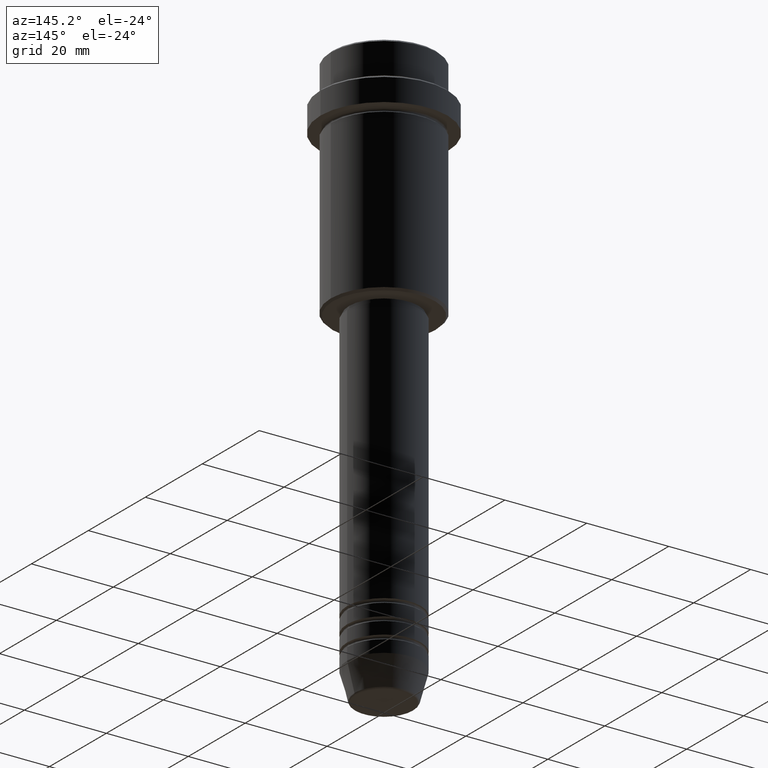
[diagram: clean part render]
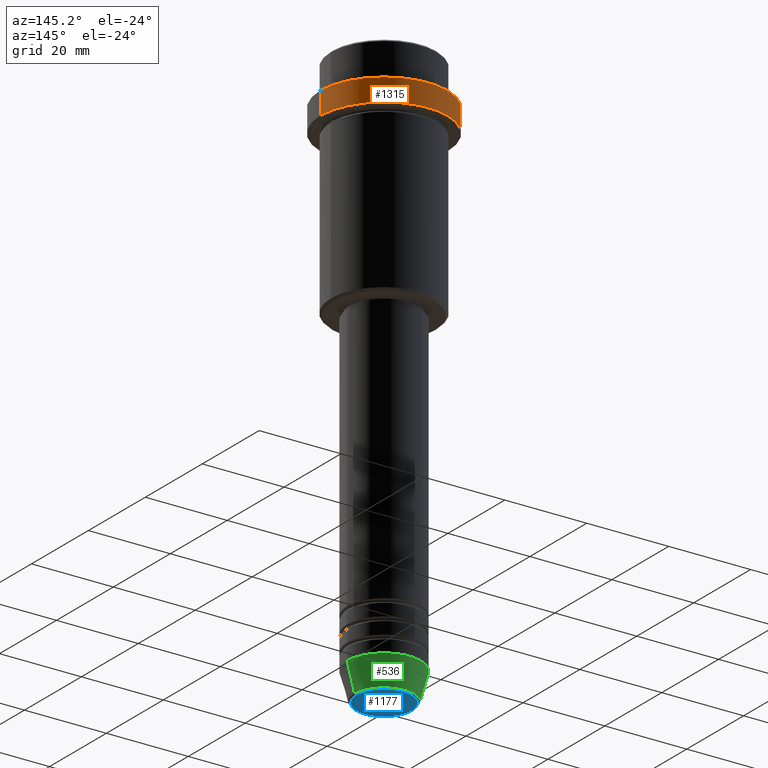
[diagram: same view with three faces highlighted in distinct colors, each labeled with its STEP entity id]
A machine part, auxiliary view with three faces highlighted in distinct colors.
Their STEP definitions:

[orange] entity #1315 — the highlighted cylindrical surface (partial cylindrical patch) has radius 15.5 mm, axis along (-0, -0, 1).
#61 = CARTESIAN_POINT ( 'NONE',  ( 0.000000000000000000, 0.000000000000000000, -9.499999999999984013 ) ) ;
#99 = EDGE_CURVE ( 'NONE', #1383, #1234, #781, .T. ) ;
#104 = CARTESIAN_POINT ( 'NONE',  ( 15.50000000000000000, 0.000000000000000000, 0.000000000000000000 ) ) ;
#113 = ORIENTED_EDGE ( 'NONE', *, *, #1080, .T. ) ;
#120 = EDGE_LOOP ( 'NONE', ( #833, #552, #113, #553 ) ) ;
#137 = VECTOR ( 'NONE', #991, 1000.000000000000000 ) ;
#149 = DIRECTION ( 'NONE',  ( -0.000000000000000000, -0.000000000000000000, 1.000000000000000000 ) ) ;
#176 = AXIS2_PLACEMENT_3D ( 'NONE', #1112, #149, #1356 ) ;
#220 = EDGE_CURVE ( 'NONE', #1232, #1383, #221, .T. ) ;
#221 = CIRCLE ( 'NONE', #176, 15.50000000000000000 ) ;
#249 = DIRECTION ( 'NONE',  ( 1.000000000000000000, 0.000000000000000000, 0.000000000000000000 ) ) ;
#390 = VERTEX_POINT ( 'NONE', #489 ) ;
#401 = CIRCLE ( 'NONE', #557, 15.50000000000000000 ) ;
#418 = DIRECTION ( 'NONE',  ( -0.000000000000000000, -0.000000000000000000, 1.000000000000000000 ) ) ;
#422 = CYLINDRICAL_SURFACE ( 'NONE', #652, 15.50000000000000000 ) ;
#489 = CARTESIAN_POINT ( 'NONE',  ( 15.50000000000000000, 0.000000000000000000, -9.499999999999984013 ) ) ;
#506 = CARTESIAN_POINT ( 'NONE',  ( 0.000000000000000000, 0.000000000000000000, 0.000000000000000000 ) ) ;
#509 = EDGE_CURVE ( 'NONE', #1232, #390, #740, .T. ) ;
#513 = CARTESIAN_POINT ( 'NONE',  ( 15.50000000000000000, 0.000000000000000000, -15.00000000000000000 ) ) ;
#552 = ORIENTED_EDGE ( 'NONE', *, *, #99, .T. ) ;
#553 = ORIENTED_EDGE ( 'NONE', *, *, #509, .F. ) ;
#557 = AXIS2_PLACEMENT_3D ( 'NONE', #61, #585, #249 ) ;
#585 = DIRECTION ( 'NONE',  ( 0.000000000000000000, 0.000000000000000000, -1.000000000000000000 ) ) ;
#652 = AXIS2_PLACEMENT_3D ( 'NONE', #506, #785, #763 ) ;
#664 = CARTESIAN_POINT ( 'NONE',  ( -15.50000000000000000, 1.898202538678397557E-15, 0.000000000000000000 ) ) ;
#740 = LINE ( 'NONE', #104, #137 ) ;
#763 = DIRECTION ( 'NONE',  ( 1.000000000000000000, 0.000000000000000000, 0.000000000000000000 ) ) ;
#778 = VECTOR ( 'NONE', #418, 1000.000000000000000 ) ;
#781 = LINE ( 'NONE', #664, #778 ) ;
#785 = DIRECTION ( 'NONE',  ( -0.000000000000000000, -0.000000000000000000, 1.000000000000000000 ) ) ;
#833 = ORIENTED_EDGE ( 'NONE', *, *, #220, .T. ) ;
#991 = DIRECTION ( 'NONE',  ( -0.000000000000000000, -0.000000000000000000, 1.000000000000000000 ) ) ;
#1004 = CARTESIAN_POINT ( 'NONE',  ( -15.50000000000000000, 1.898202538678397557E-15, -15.00000000000000000 ) ) ;
#1080 = EDGE_CURVE ( 'NONE', #1234, #390, #401, .T. ) ;
#1112 = CARTESIAN_POINT ( 'NONE',  ( 0.000000000000000000, 0.000000000000000000, -15.00000000000000000 ) ) ;
#1232 = VERTEX_POINT ( 'NONE', #513 ) ;
#1234 = VERTEX_POINT ( 'NONE', #1283 ) ;
#1283 = CARTESIAN_POINT ( 'NONE',  ( -15.50000000000000000, 1.898202538678397557E-15, -9.499999999999984013 ) ) ;
#1315 = ADVANCED_FACE ( 'NONE', ( #1401 ), #422, .T. ) ;
#1356 = DIRECTION ( 'NONE',  ( 1.000000000000000000, 0.000000000000000000, 0.000000000000000000 ) ) ;
#1383 = VERTEX_POINT ( 'NONE', #1004 ) ;
#1401 = FACE_OUTER_BOUND ( 'NONE', #120, .T. ) ;

[blue] entity #1177 — the highlighted planar face has unit normal (0, -0, 1).
#105 = CIRCLE ( 'NONE', #1072, 6.740692158992658278 ) ;
#413 = EDGE_LOOP ( 'NONE', ( #753, #887 ) ) ;
#416 = CARTESIAN_POINT ( 'NONE',  ( 0.000000000000000000, 0.000000000000000000, -140.0000000000000000 ) ) ;
#441 = VERTEX_POINT ( 'NONE', #1407 ) ;
#466 = VERTEX_POINT ( 'NONE', #1000 ) ;
#476 = DIRECTION ( 'NONE',  ( 0.000000000000000000, 0.000000000000000000, -1.000000000000000000 ) ) ;
#497 = DIRECTION ( 'NONE',  ( 1.000000000000000000, 0.000000000000000000, 0.000000000000000000 ) ) ;
#562 = EDGE_CURVE ( 'NONE', #466, #441, #1144, .T. ) ;
#613 = DIRECTION ( 'NONE',  ( 0.000000000000000000, -0.000000000000000000, 1.000000000000000000 ) ) ;
#731 = PLANE ( 'NONE',  #962 ) ;
#753 = ORIENTED_EDGE ( 'NONE', *, *, #562, .T. ) ;
#787 = DIRECTION ( 'NONE',  ( 1.000000000000000000, 0.000000000000000000, 0.000000000000000000 ) ) ;
#859 = CARTESIAN_POINT ( 'NONE',  ( 0.000000000000000000, 0.000000000000000000, -140.0000000000000000 ) ) ;
#887 = ORIENTED_EDGE ( 'NONE', *, *, #1095, .T. ) ;
#909 = DIRECTION ( 'NONE',  ( 1.000000000000000000, 0.000000000000000000, 0.000000000000000000 ) ) ;
#938 = CARTESIAN_POINT ( 'NONE',  ( 0.000000000000000000, 0.000000000000000000, -140.0000000000000000 ) ) ;
#962 = AXIS2_PLACEMENT_3D ( 'NONE', #859, #613, #497 ) ;
#970 = AXIS2_PLACEMENT_3D ( 'NONE', #416, #1021, #787 ) ;
#1000 = CARTESIAN_POINT ( 'NONE',  ( 6.740692158992658278, 0.000000000000000000, -140.0000000000000000 ) ) ;
#1021 = DIRECTION ( 'NONE',  ( 0.000000000000000000, 0.000000000000000000, -1.000000000000000000 ) ) ;
#1072 = AXIS2_PLACEMENT_3D ( 'NONE', #938, #476, #909 ) ;
#1087 = FACE_OUTER_BOUND ( 'NONE', #413, .T. ) ;
#1095 = EDGE_CURVE ( 'NONE', #441, #466, #105, .T. ) ;
#1144 = CIRCLE ( 'NONE', #970, 6.740692158992658278 ) ;
#1177 = ADVANCED_FACE ( 'NONE', ( #1087 ), #731, .F. ) ;
#1407 = CARTESIAN_POINT ( 'NONE',  ( -6.740692158992658278, 8.550696569392685681E-16, -140.0000000000000000 ) ) ;

[green] entity #536 — the highlighted conical surface has half-angle 15 deg.
#76 = DIRECTION ( 'NONE',  ( -0.000000000000000000, -0.000000000000000000, 1.000000000000000000 ) ) ;
#142 = CARTESIAN_POINT ( 'NONE',  ( 9.000000000000000000, 0.000000000000000000, -133.0000000000000000 ) ) ;
#173 = AXIS2_PLACEMENT_3D ( 'NONE', #398, #76, #756 ) ;
#247 = CARTESIAN_POINT ( 'NONE',  ( -7.223655072137189492, 9.934123627281765110E-16, -139.6294095225512990 ) ) ;
#248 = EDGE_CURVE ( 'NONE', #459, #716, #898, .T. ) ;
#305 = CARTESIAN_POINT ( 'NONE',  ( 9.000000000000000000, 0.000000000000000000, -133.0000000000000000 ) ) ;
#387 = EDGE_LOOP ( 'NONE', ( #622, #1334, #987, #435 ) ) ;
#398 = CARTESIAN_POINT ( 'NONE',  ( 0.000000000000000000, 0.000000000000000000, -139.6294095225512990 ) ) ;
#435 = ORIENTED_EDGE ( 'NONE', *, *, #1161, .F. ) ;
#459 = VERTEX_POINT ( 'NONE', #305 ) ;
#492 = CIRCLE ( 'NONE', #173, 7.223655072137188604 ) ;
#536 = ADVANCED_FACE ( 'NONE', ( #968 ), #658, .T. ) ;
#579 = DIRECTION ( 'NONE',  ( 0.2588190451025213501, 0.000000000000000000, 0.9659258262890680902 ) ) ;
#602 = VERTEX_POINT ( 'NONE', #247 ) ;
#622 = ORIENTED_EDGE ( 'NONE', *, *, #1223, .T. ) ;
#653 = DIRECTION ( 'NONE',  ( -0.000000000000000000, -0.000000000000000000, 1.000000000000000000 ) ) ;
#658 = CONICAL_SURFACE ( 'NONE', #855, 9.000000000000000000, 0.2617993877991500740 ) ;
#708 = DIRECTION ( 'NONE',  ( -0.2588190451025213501, 3.169619151431772337E-17, 0.9659258262890680902 ) ) ;
#716 = VERTEX_POINT ( 'NONE', #929 ) ;
#756 = DIRECTION ( 'NONE',  ( 1.000000000000000000, 0.000000000000000000, 0.000000000000000000 ) ) ;
#757 = CARTESIAN_POINT ( 'NONE',  ( 0.000000000000000000, 0.000000000000000000, -133.0000000000000000 ) ) ;
#790 = VERTEX_POINT ( 'NONE', #1041 ) ;
#796 = VECTOR ( 'NONE', #708, 1000.000000000000000 ) ;
#827 = LINE ( 'NONE', #142, #1201 ) ;
#849 = AXIS2_PLACEMENT_3D ( 'NONE', #1237, #906, #910 ) ;
#855 = AXIS2_PLACEMENT_3D ( 'NONE', #757, #653, #1100 ) ;
#898 = CIRCLE ( 'NONE', #849, 9.000000000000000000 ) ;
#906 = DIRECTION ( 'NONE',  ( -0.000000000000000000, -0.000000000000000000, 1.000000000000000000 ) ) ;
#910 = DIRECTION ( 'NONE',  ( 1.000000000000000000, 0.000000000000000000, 0.000000000000000000 ) ) ;
#929 = CARTESIAN_POINT ( 'NONE',  ( -9.000000000000000000, 1.102182119232617714E-15, -133.0000000000000000 ) ) ;
#968 = FACE_OUTER_BOUND ( 'NONE', #387, .T. ) ;
#987 = ORIENTED_EDGE ( 'NONE', *, *, #248, .F. ) ;
#1041 = CARTESIAN_POINT ( 'NONE',  ( 7.223655072137188604, 0.000000000000000000, -139.6294095225512990 ) ) ;
#1100 = DIRECTION ( 'NONE',  ( 1.000000000000000000, 0.000000000000000000, 0.000000000000000000 ) ) ;
#1124 = EDGE_CURVE ( 'NONE', #602, #716, #1229, .T. ) ;
#1152 = CARTESIAN_POINT ( 'NONE',  ( -9.000000000000000000, 1.102182119232617714E-15, -133.0000000000000000 ) ) ;
#1161 = EDGE_CURVE ( 'NONE', #790, #459, #827, .T. ) ;
#1201 = VECTOR ( 'NONE', #579, 1000.000000000000000 ) ;
#1223 = EDGE_CURVE ( 'NONE', #790, #602, #492, .T. ) ;
#1229 = LINE ( 'NONE', #1152, #796 ) ;
#1237 = CARTESIAN_POINT ( 'NONE',  ( 0.000000000000000000, 0.000000000000000000, -133.0000000000000000 ) ) ;
#1334 = ORIENTED_EDGE ( 'NONE', *, *, #1124, .T. ) ;